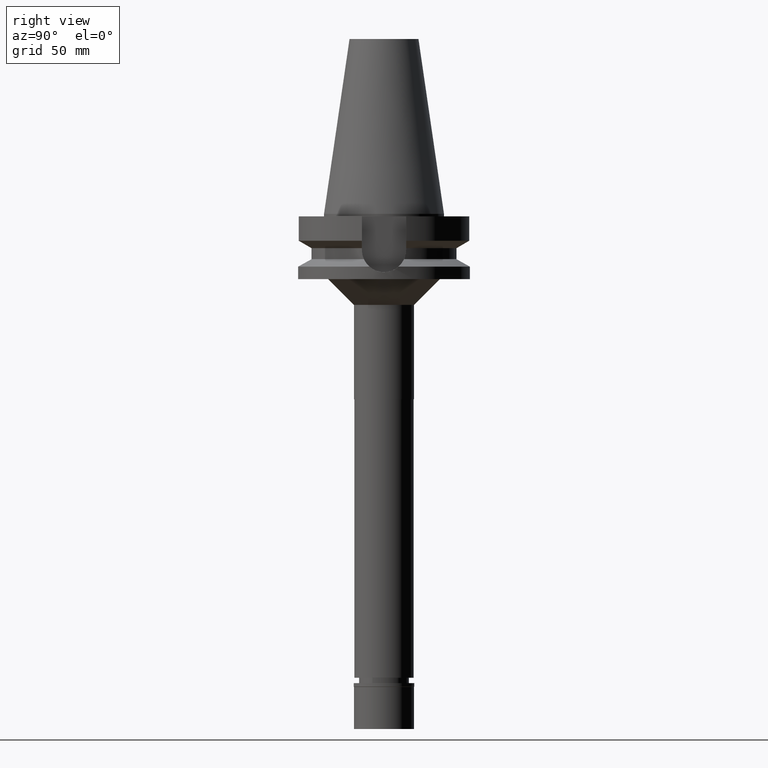
[diagram: clean part render]
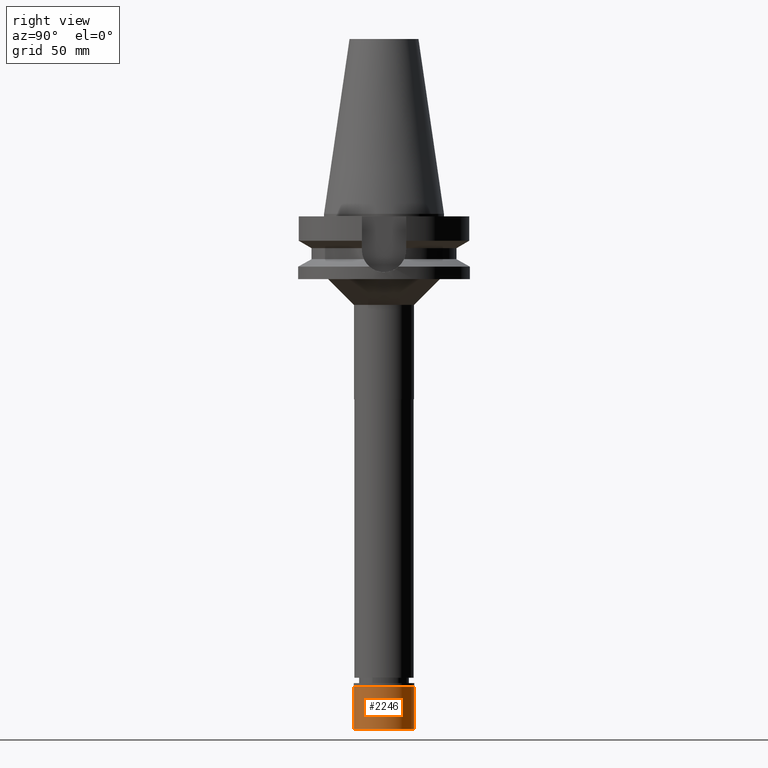
[diagram: same view with one face highlighted and labeled with its STEP entity id]
A machine part, right view. The second image highlights one B-rep face of the part: STEP entity #2246.
In plain terms, the highlighted cylindrical surface (edge-blend (fillet) strip) has radius 17.5 mm, axis along (0, 0, -1).
Its self-contained STEP definition (entity closure, byte-faithful):
#238 = LINE ( 'NONE', #2253, #2103 ) ;
#274 = CIRCLE ( 'NONE', #2109, 17.50000000000000000 ) ;
#303 = DIRECTION ( 'NONE',  ( 0.0000000000000000000, 0.0000000000000000000, -1.000000000000000000 ) ) ;
#330 = CARTESIAN_POINT ( 'NONE',  ( 0.0000000000000000000, 0.0000000000000000000, 0.0000000000000000000 ) ) ;
#349 = DIRECTION ( 'NONE',  ( 0.0000000000000000000, -1.000000000000000000, 0.0000000000000000000 ) ) ;
#373 = DIRECTION ( 'NONE',  ( 0.0000000000000000000, 0.0000000000000000000, 1.000000000000000000 ) ) ;
#388 = ORIENTED_EDGE ( 'NONE', *, *, #2691, .F. ) ;
#438 = AXIS2_PLACEMENT_3D ( 'NONE', #330, #580, #349 ) ;
#580 = DIRECTION ( 'NONE',  ( 0.0000000000000000000, 0.0000000000000000000, -1.000000000000000000 ) ) ;
#597 = AXIS2_PLACEMENT_3D ( 'NONE', #2991, #303, #2508 ) ;
#1157 = CARTESIAN_POINT ( 'NONE',  ( 0.0000000000000000000, -17.50000000000000000, -2.100000000000000089 ) ) ;
#1298 = EDGE_CURVE ( 'NONE', #2247, #2870, #2582, .T. ) ;
#1331 = FACE_OUTER_BOUND ( 'NONE', #2937, .T. ) ;
#1405 = DIRECTION ( 'NONE',  ( 0.0000000000000000000, -1.000000000000000000, 0.0000000000000000000 ) ) ;
#1422 = ORIENTED_EDGE ( 'NONE', *, *, #1298, .T. ) ;
#1452 = VERTEX_POINT ( 'NONE', #2298 ) ;
#1480 = DIRECTION ( 'NONE',  ( 0.0000000000000000000, 0.0000000000000000000, -1.000000000000000000 ) ) ;
#1684 = CARTESIAN_POINT ( 'NONE',  ( 0.0000000000000000000, 0.0000000000000000000, -26.70000000000000284 ) ) ;
#2076 = CYLINDRICAL_SURFACE ( 'NONE', #438, 17.50000000000000000 ) ;
#2103 = VECTOR ( 'NONE', #1480, 1000.000000000000000 ) ;
#2109 = AXIS2_PLACEMENT_3D ( 'NONE', #1684, #373, #1405 ) ;
#2123 = VERTEX_POINT ( 'NONE', #2258 ) ;
#2182 = CARTESIAN_POINT ( 'NONE',  ( 0.0000000000000000000, -17.50000000000000000, -2.100000000000000089 ) ) ;
#2246 = ADVANCED_FACE ( 'NONE', ( #1331 ), #2076, .T. ) ;
#2247 = VERTEX_POINT ( 'NONE', #2860 ) ;
#2253 = CARTESIAN_POINT ( 'NONE',  ( 0.0000000000000000000, 17.50000000000000000, -2.100000000000000089 ) ) ;
#2258 = CARTESIAN_POINT ( 'NONE',  ( 0.0000000000000000000, -17.50000000000000000, -26.70000000000000284 ) ) ;
#2298 = CARTESIAN_POINT ( 'NONE',  ( 0.0000000000000000000, 17.50000000000000000, -26.70000000000000284 ) ) ;
#2489 = VECTOR ( 'NONE', #2924, 1000.000000000000000 ) ;
#2508 = DIRECTION ( 'NONE',  ( 0.0000000000000000000, 1.000000000000000000, 0.0000000000000000000 ) ) ;
#2582 = CIRCLE ( 'NONE', #597, 17.50000000000000000 ) ;
#2691 = EDGE_CURVE ( 'NONE', #2247, #1452, #238, .T. ) ;
#2860 = CARTESIAN_POINT ( 'NONE',  ( 0.0000000000000000000, 17.50000000000000000, -2.100000000000000089 ) ) ;
#2870 = VERTEX_POINT ( 'NONE', #2182 ) ;
#2880 = ORIENTED_EDGE ( 'NONE', *, *, #2933, .T. ) ;
#2905 = LINE ( 'NONE', #1157, #2489 ) ;
#2922 = ORIENTED_EDGE ( 'NONE', *, *, #3075, .T. ) ;
#2924 = DIRECTION ( 'NONE',  ( 0.0000000000000000000, 0.0000000000000000000, -1.000000000000000000 ) ) ;
#2933 = EDGE_CURVE ( 'NONE', #2123, #1452, #274, .T. ) ;
#2937 = EDGE_LOOP ( 'NONE', ( #1422, #2922, #2880, #388 ) ) ;
#2991 = CARTESIAN_POINT ( 'NONE',  ( 0.0000000000000000000, 0.0000000000000000000, -2.100000000000000089 ) ) ;
#3075 = EDGE_CURVE ( 'NONE', #2870, #2123, #2905, .T. ) ;